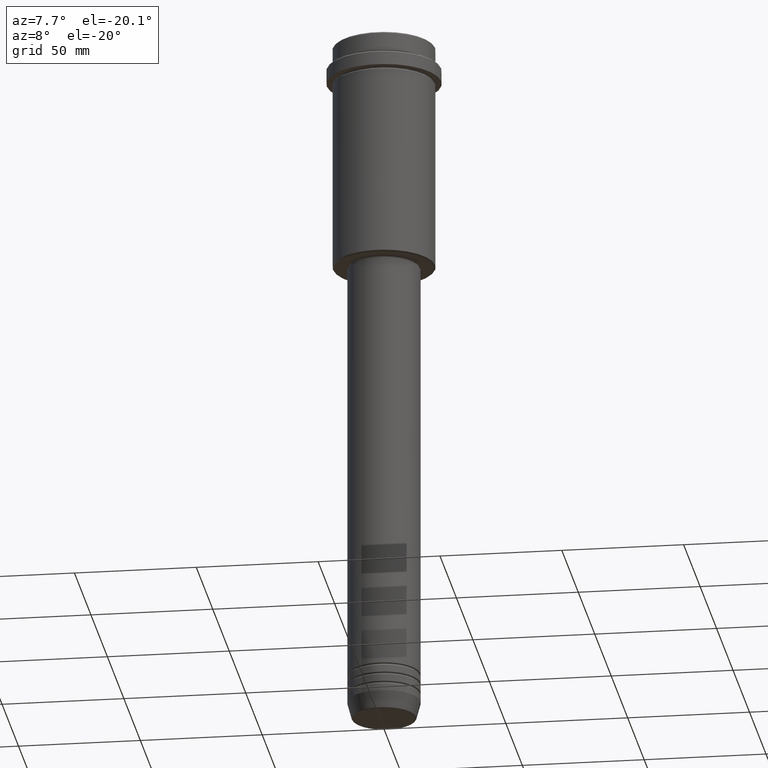
[diagram: clean part render]
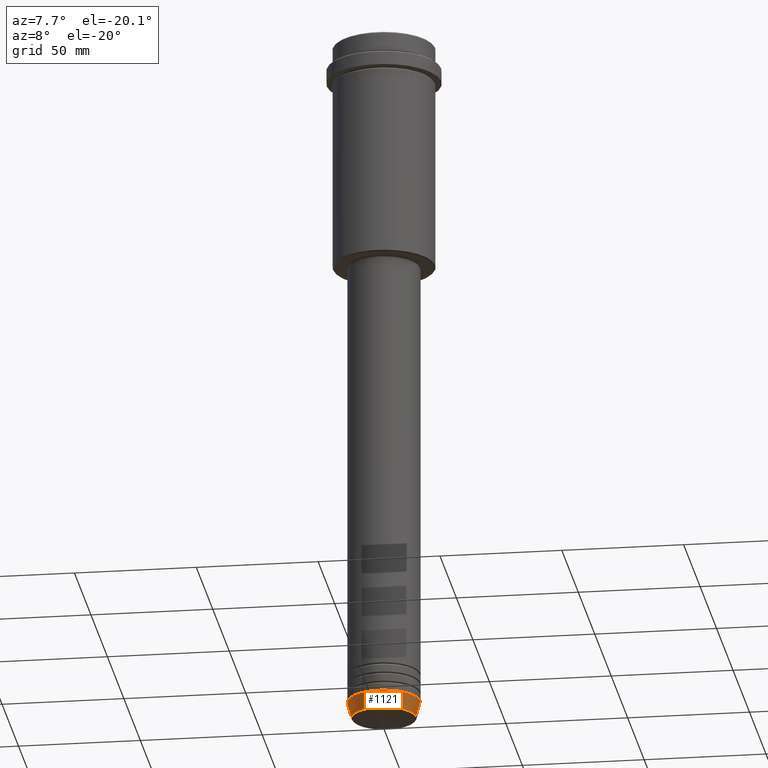
[diagram: same view with one face highlighted and labeled with its STEP entity id]
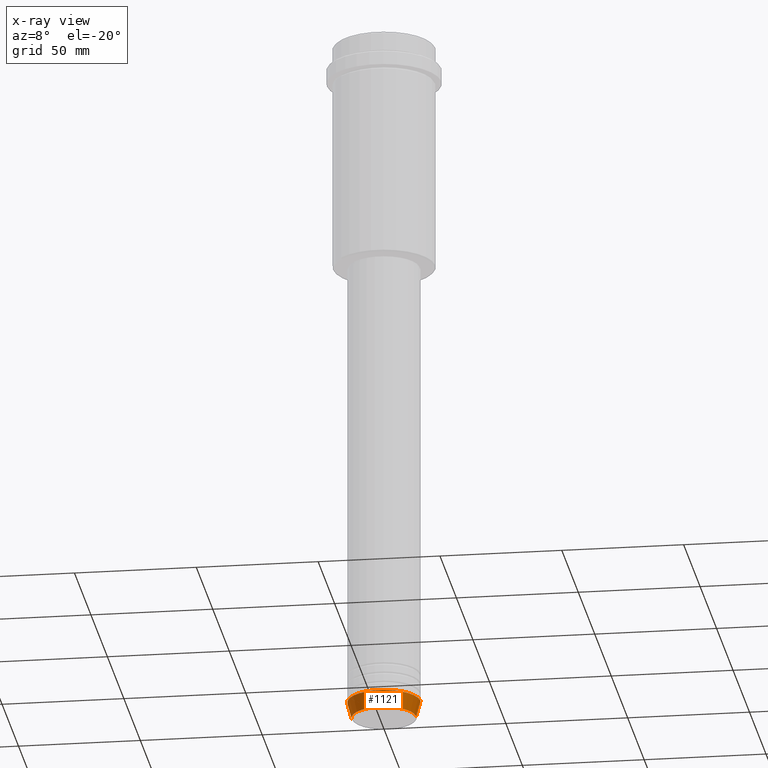
[diagram: x-ray of the same camera — body ghosted, the highlighted face saturated]
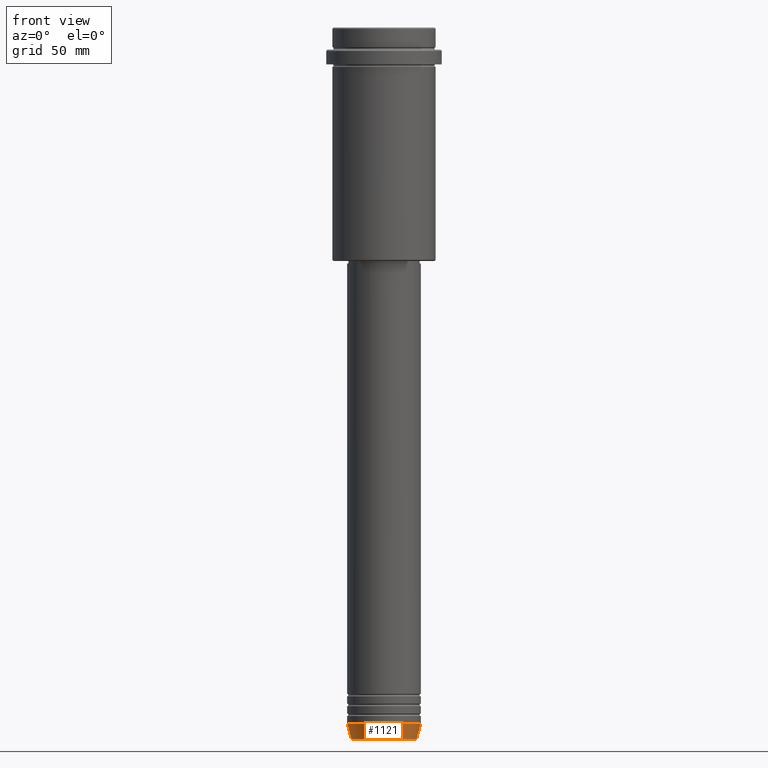
[diagram: same view with one face highlighted and labeled with its STEP entity id]
A machine part, auxiliary view. The second image highlights one B-rep face of the part: STEP entity #1121.
The next image is the same camera in x-ray: the body ghosted, the highlighted face saturated — about 0% of this face is hidden behind the body in this view.
A second angle (front view) of the same face is appended — the face is thin or edge-on in the first view.
In plain terms, the highlighted conical surface has half-angle 15 deg.
Its self-contained STEP definition (entity closure, byte-faithful):
#6 = DIRECTION ( 'NONE',  ( -0.000000000000000000, -0.000000000000000000, 1.000000000000000000 ) ) ;
#35 = ORIENTED_EDGE ( 'NONE', *, *, #1277, .T. ) ;
#66 = EDGE_CURVE ( 'NONE', #991, #1220, #597, .T. ) ;
#78 = CARTESIAN_POINT ( 'NONE',  ( 15.00000000000000000, 0.000000000000000000, -283.0000000000000568 ) ) ;
#92 = VERTEX_POINT ( 'NONE', #658 ) ;
#127 = CARTESIAN_POINT ( 'NONE',  ( 0.000000000000000000, 0.000000000000000000, -283.0000000000000568 ) ) ;
#144 = EDGE_LOOP ( 'NONE', ( #315, #476, #35, #701 ) ) ;
#181 = AXIS2_PLACEMENT_3D ( 'NONE', #127, #6, #992 ) ;
#225 = CIRCLE ( 'NONE', #1322, 15.00000000000000000 ) ;
#315 = ORIENTED_EDGE ( 'NONE', *, *, #66, .F. ) ;
#324 = AXIS2_PLACEMENT_3D ( 'NONE', #460, #373, #1313 ) ;
#373 = DIRECTION ( 'NONE',  ( -0.000000000000000000, -0.000000000000000000, 1.000000000000000000 ) ) ;
#410 = VECTOR ( 'NONE', #488, 1000.000000000000000 ) ;
#421 = DIRECTION ( 'NONE',  ( 1.000000000000000000, 0.000000000000000000, 0.000000000000000000 ) ) ;
#426 = DIRECTION ( 'NONE',  ( -0.000000000000000000, -0.000000000000000000, 1.000000000000000000 ) ) ;
#460 = CARTESIAN_POINT ( 'NONE',  ( 0.000000000000000000, 0.000000000000000000, -289.6294095225513274 ) ) ;
#476 = ORIENTED_EDGE ( 'NONE', *, *, #1239, .T. ) ;
#486 = CARTESIAN_POINT ( 'NONE',  ( 13.22365507213718772, 0.000000000000000000, -289.6294095225513274 ) ) ;
#488 = DIRECTION ( 'NONE',  ( -0.2588190451025213501, 3.169619151431772337E-17, 0.9659258262890680902 ) ) ;
#557 = CARTESIAN_POINT ( 'NONE',  ( -15.00000000000000000, 1.836970198721029589E-15, -283.0000000000000568 ) ) ;
#572 = EDGE_CURVE ( 'NONE', #1220, #92, #225, .T. ) ;
#587 = FACE_OUTER_BOUND ( 'NONE', #144, .T. ) ;
#597 = LINE ( 'NONE', #1029, #410 ) ;
#649 = VECTOR ( 'NONE', #1158, 1000.000000000000000 ) ;
#658 = CARTESIAN_POINT ( 'NONE',  ( 15.00000000000000000, 0.000000000000000000, -283.0000000000000568 ) ) ;
#669 = CONICAL_SURFACE ( 'NONE', #181, 15.00000000000000000, 0.2617993877991500740 ) ;
#701 = ORIENTED_EDGE ( 'NONE', *, *, #572, .F. ) ;
#736 = LINE ( 'NONE', #78, #649 ) ;
#905 = VERTEX_POINT ( 'NONE', #486 ) ;
#991 = VERTEX_POINT ( 'NONE', #1050 ) ;
#992 = DIRECTION ( 'NONE',  ( 1.000000000000000000, 0.000000000000000000, 0.000000000000000000 ) ) ;
#1029 = CARTESIAN_POINT ( 'NONE',  ( -15.00000000000000000, 1.836970198721029589E-15, -283.0000000000000568 ) ) ;
#1050 = CARTESIAN_POINT ( 'NONE',  ( -13.22365507213718772, 1.728200442216588386E-15, -289.6294095225513274 ) ) ;
#1121 = ADVANCED_FACE ( 'NONE', ( #587 ), #669, .T. ) ;
#1158 = DIRECTION ( 'NONE',  ( 0.2588190451025213501, 0.000000000000000000, 0.9659258262890680902 ) ) ;
#1170 = CARTESIAN_POINT ( 'NONE',  ( 0.000000000000000000, 0.000000000000000000, -283.0000000000000568 ) ) ;
#1220 = VERTEX_POINT ( 'NONE', #557 ) ;
#1239 = EDGE_CURVE ( 'NONE', #991, #905, #1276, .T. ) ;
#1276 = CIRCLE ( 'NONE', #324, 13.22365507213718772 ) ;
#1277 = EDGE_CURVE ( 'NONE', #905, #92, #736, .T. ) ;
#1313 = DIRECTION ( 'NONE',  ( 1.000000000000000000, 0.000000000000000000, 0.000000000000000000 ) ) ;
#1322 = AXIS2_PLACEMENT_3D ( 'NONE', #1170, #426, #421 ) ;